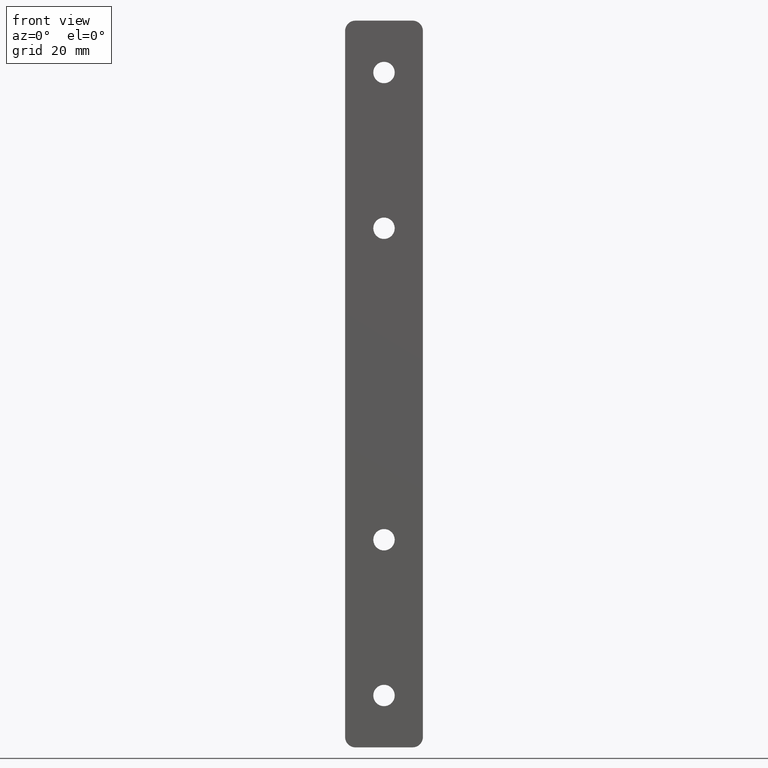
[diagram: clean part render]
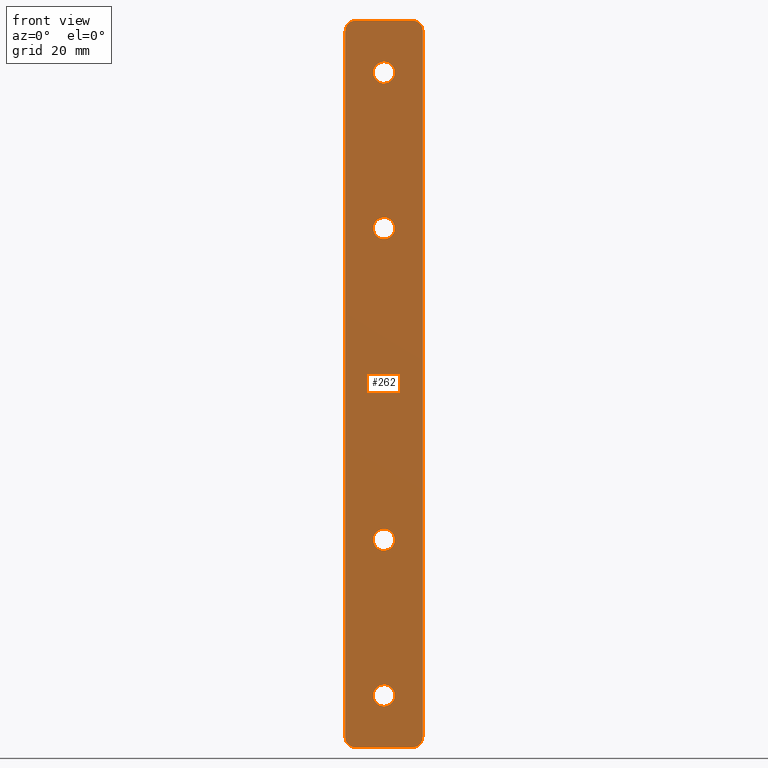
[diagram: same view with one face highlighted and labeled with its STEP entity id]
A machine part, front view. The second image highlights one B-rep face of the part: STEP entity #262.
In plain terms, the highlighted planar face has unit normal (0, -1, 0).
Its self-contained STEP definition (entity closure, byte-faithful):
#20=PLANE('',#294);
#25=LINE('',#408,#41);
#31=LINE('',#428,#47);
#34=LINE('',#437,#50);
#36=LINE('',#442,#52);
#41=VECTOR('',#333,11.);
#47=VECTOR('',#353,136.);
#50=VECTOR('',#362,11.);
#52=VECTOR('',#370,136.);
#61=FACE_BOUND('',#101,.T.);
#62=FACE_BOUND('',#102,.T.);
#63=FACE_BOUND('',#103,.T.);
#64=FACE_BOUND('',#104,.T.);
#78=FACE_OUTER_BOUND('',#100,.T.);
#100=EDGE_LOOP('',(#229,#230,#231,#232,#233,#234,#235,#236));
#101=EDGE_LOOP('',(#237));
#102=EDGE_LOOP('',(#238));
#103=EDGE_LOOP('',(#239));
#104=EDGE_LOOP('',(#240));
#105=CIRCLE('',#266,2.067);
#107=CIRCLE('',#269,2.067);
#109=CIRCLE('',#272,2.067);
#111=CIRCLE('',#275,2.067);
#114=CIRCLE('',#279,2.);
#118=CIRCLE('',#286,2.);
#119=CIRCLE('',#289,2.);
#120=CIRCLE('',#292,2.);
#121=VERTEX_POINT('',#375);
#123=VERTEX_POINT('',#380);
#125=VERTEX_POINT('',#385);
#127=VERTEX_POINT('',#390);
#131=VERTEX_POINT('',#398);
#132=VERTEX_POINT('',#400);
#134=VERTEX_POINT('',#406);
#140=VERTEX_POINT('',#422);
#141=VERTEX_POINT('',#426);
#142=VERTEX_POINT('',#430);
#143=VERTEX_POINT('',#431);
#144=VERTEX_POINT('',#436);
#145=EDGE_CURVE('',#121,#121,#105,.T.);
#147=EDGE_CURVE('',#123,#123,#107,.T.);
#149=EDGE_CURVE('',#125,#125,#109,.T.);
#151=EDGE_CURVE('',#127,#127,#111,.T.);
#155=EDGE_CURVE('',#131,#132,#114,.T.);
#159=EDGE_CURVE('',#134,#131,#25,.T.);
#166=EDGE_CURVE('',#140,#134,#118,.T.);
#169=EDGE_CURVE('',#140,#141,#31,.T.);
#170=EDGE_CURVE('',#142,#143,#119,.T.);
#173=EDGE_CURVE('',#143,#144,#34,.T.);
#175=EDGE_CURVE('',#144,#141,#120,.T.);
#176=EDGE_CURVE('',#142,#132,#36,.T.);
#229=ORIENTED_EDGE('',*,*,#155,.F.);
#230=ORIENTED_EDGE('',*,*,#159,.F.);
#231=ORIENTED_EDGE('',*,*,#166,.F.);
#232=ORIENTED_EDGE('',*,*,#169,.T.);
#233=ORIENTED_EDGE('',*,*,#175,.F.);
#234=ORIENTED_EDGE('',*,*,#173,.F.);
#235=ORIENTED_EDGE('',*,*,#170,.F.);
#236=ORIENTED_EDGE('',*,*,#176,.T.);
#237=ORIENTED_EDGE('',*,*,#145,.T.);
#238=ORIENTED_EDGE('',*,*,#147,.T.);
#239=ORIENTED_EDGE('',*,*,#149,.T.);
#240=ORIENTED_EDGE('',*,*,#151,.T.);
#262=ADVANCED_FACE('',(#78,#61,#62,#63,#64),#20,.T.);
#266=AXIS2_PLACEMENT_3D('',#376,#299,#300);
#269=AXIS2_PLACEMENT_3D('',#381,#305,#306);
#272=AXIS2_PLACEMENT_3D('',#386,#311,#312);
#275=AXIS2_PLACEMENT_3D('',#391,#317,#318);
#279=AXIS2_PLACEMENT_3D('',#401,#326,#327);
#286=AXIS2_PLACEMENT_3D('',#423,#347,#348);
#289=AXIS2_PLACEMENT_3D('',#432,#356,#357);
#292=AXIS2_PLACEMENT_3D('',#440,#366,#367);
#294=AXIS2_PLACEMENT_3D('',#443,#371,#372);
#299=DIRECTION('center_axis',(0.,1.,0.));
#300=DIRECTION('ref_axis',(1.,0.,0.));
#305=DIRECTION('center_axis',(0.,1.,0.));
#306=DIRECTION('ref_axis',(1.,0.,0.));
#311=DIRECTION('center_axis',(0.,1.,0.));
#312=DIRECTION('ref_axis',(1.,0.,0.));
#317=DIRECTION('center_axis',(0.,1.,0.));
#318=DIRECTION('ref_axis',(1.,0.,0.));
#326=DIRECTION('center_axis',(0.,1.,0.));
#327=DIRECTION('ref_axis',(-0.707106781186546,0.,-0.707106781186549));
#333=DIRECTION('',(-1.,0.,0.));
#347=DIRECTION('center_axis',(0.,1.,0.));
#348=DIRECTION('ref_axis',(0.707106781186546,0.,-0.707106781186549));
#353=DIRECTION('',(0.,0.,1.));
#356=DIRECTION('center_axis',(0.,1.,0.));
#357=DIRECTION('ref_axis',(-0.707106781186546,0.,0.707106781186549));
#362=DIRECTION('',(1.,0.,0.));
#366=DIRECTION('center_axis',(0.,1.,0.));
#367=DIRECTION('ref_axis',(0.707106781186546,0.,0.707106781186549));
#370=DIRECTION('',(0.,0.,-1.));
#371=DIRECTION('center_axis',(0.,-1.,0.));
#372=DIRECTION('ref_axis',(1.,0.,0.));
#375=CARTESIAN_POINT('',(-2.067,-2.5,-30.));
#376=CARTESIAN_POINT('Origin',(0.,-2.5,-30.));
#380=CARTESIAN_POINT('',(-2.067,-2.5,60.));
#381=CARTESIAN_POINT('Origin',(0.,-2.5,60.));
#385=CARTESIAN_POINT('',(-2.067,-2.5,30.));
#386=CARTESIAN_POINT('Origin',(0.,-2.5,30.));
#390=CARTESIAN_POINT('',(-2.067,-2.5,-60.));
#391=CARTESIAN_POINT('Origin',(0.,-2.5,-60.));
#398=CARTESIAN_POINT('',(-5.5,-2.5,-70.));
#400=CARTESIAN_POINT('',(-7.5,-2.5,-68.));
#401=CARTESIAN_POINT('Origin',(-5.5,-2.5,-68.));
#406=CARTESIAN_POINT('',(5.5,-2.5,-70.));
#408=CARTESIAN_POINT('',(7.5,-2.5,-70.));
#422=CARTESIAN_POINT('',(7.5,-2.5,-68.));
#423=CARTESIAN_POINT('Origin',(5.5,-2.5,-68.));
#426=CARTESIAN_POINT('',(7.5,-2.5,68.));
#428=CARTESIAN_POINT('',(7.5,-2.5,0.));
#430=CARTESIAN_POINT('',(-7.5,-2.5,68.));
#431=CARTESIAN_POINT('',(-5.5,-2.5,70.));
#432=CARTESIAN_POINT('Origin',(-5.5,-2.5,68.));
#436=CARTESIAN_POINT('',(5.5,-2.5,70.));
#437=CARTESIAN_POINT('',(7.5,-2.5,70.));
#440=CARTESIAN_POINT('Origin',(5.5,-2.5,68.));
#442=CARTESIAN_POINT('',(-7.5,-2.5,0.));
#443=CARTESIAN_POINT('Origin',(-7.5,-2.5,0.));